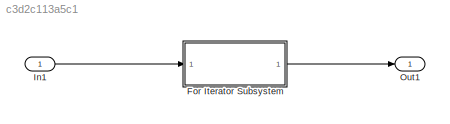
MODEL slx_c3d2c113a5c1
KIND model
CONFIG AbsTol = auto
CONFIG EnableMultiTasking = off
CONFIG FixedStep = auto
CONFIG MaxStep = auto
CONFIG MinStep = auto
CONFIG RelTol = 1e-3
CONFIG SampleTimeConstraint = Unconstrained
CONFIG SolverName = VariableStepAuto
CONFIG StartTime = 0.0
CONFIG StopTime = 10.0
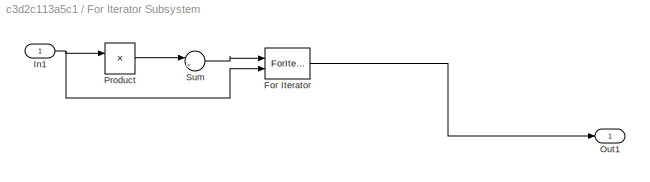
BLOCK [SubSystem] For Iterator Subsystem
  Ports = [1, 1]
  RequestExecContextInheritance = off
  TreatAsAtomicUnit = on
BLOCK [ForIterator] For Iterator Subsystem/For Iterator
  ExternalIncrement = on
  IterationSource = external
  Ports = [2, 1]
BLOCK [Inport] For Iterator Subsystem/In1
BLOCK [Outport] For Iterator Subsystem/Out1
BLOCK [Product] For Iterator Subsystem/Product
  Ports = [2, 1]
BLOCK [Sum] For Iterator Subsystem/Sum
  Inputs = |++
  Ports = [2, 1]
BLOCK [Inport] In1
BLOCK [Outport] Out1
LINE For Iterator Subsystem/For Iterator:1 -> For Iterator Subsystem/Out1:1
NET For Iterator Subsystem/In1:1 -> For Iterator Subsystem/For Iterator:2, For Iterator Subsystem/Product:1
LINE For Iterator Subsystem/Product:1 -> For Iterator Subsystem/Sum:1
LINE For Iterator Subsystem/Sum:1 -> For Iterator Subsystem/For Iterator:1
LINE For Iterator Subsystem:1 -> Out1:1
LINE In1:1 -> For Iterator Subsystem:1
note: NET lines group one-source signal fan-out (src -> all destinations, sorted); 1:1 wires keep LINE
